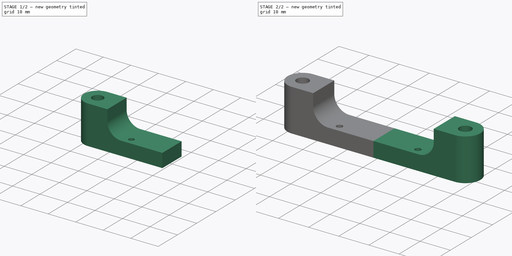
[diagram: build sequence overview — one tinted view per stage of 2, left to right]
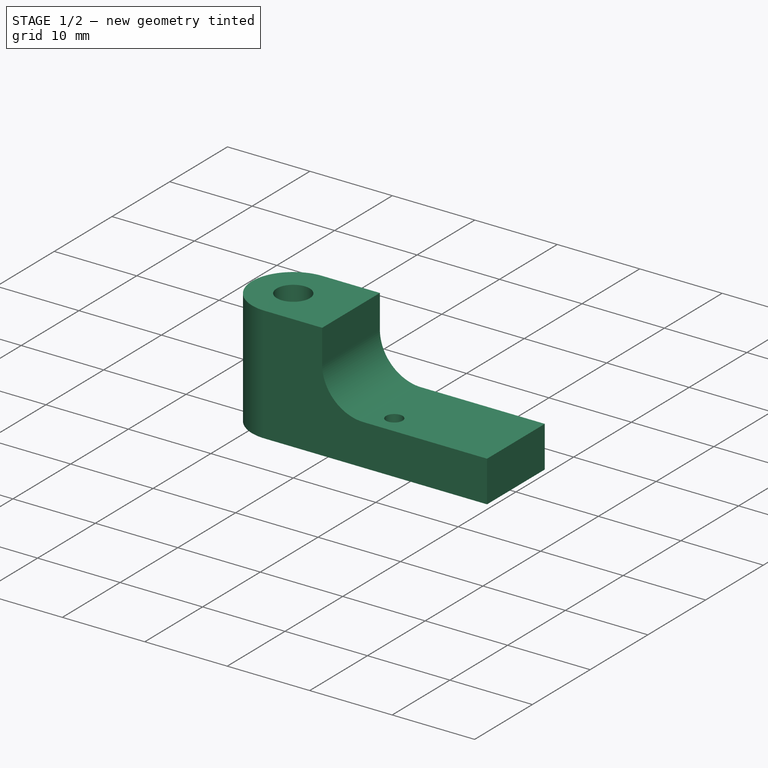
[diagram: stage 1 of 2 — iso view after this stage's code; geometry added in this stage tinted green]
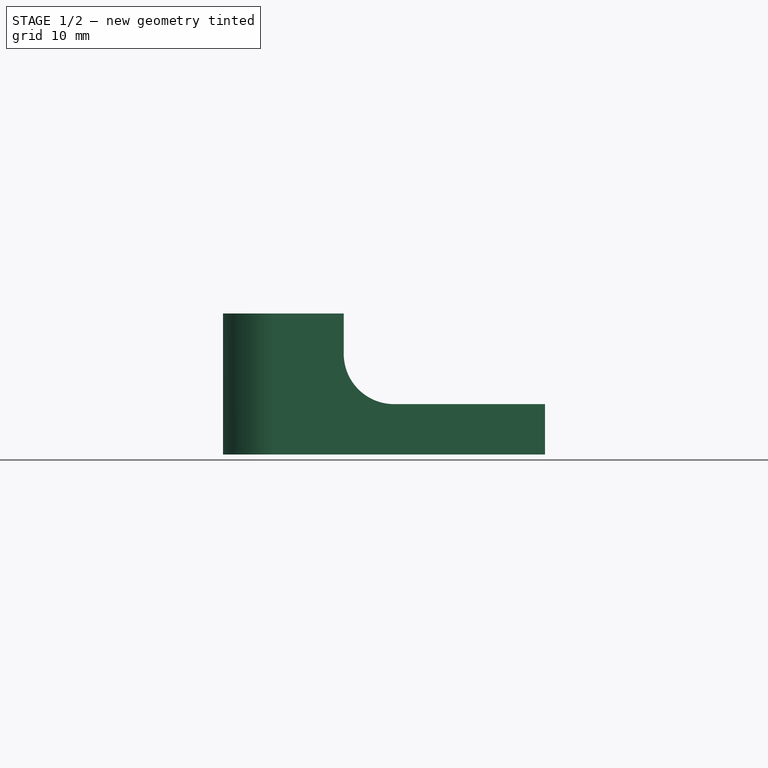
[diagram: stage 1 of 2 — front view after this stage's code; geometry added in this stage tinted green]
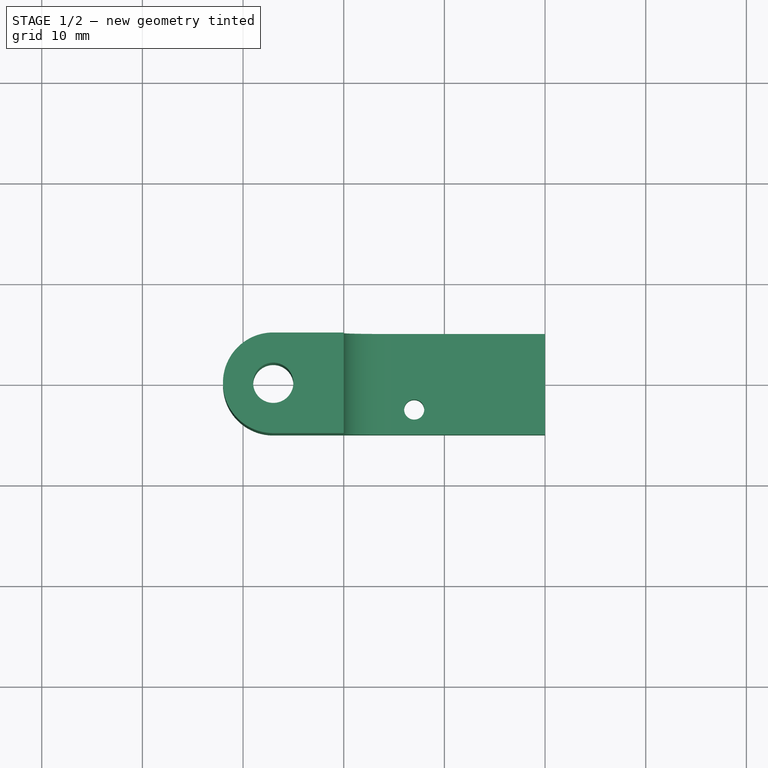
[diagram: stage 1 of 2 — top view after this stage's code; geometry added in this stage tinted green]
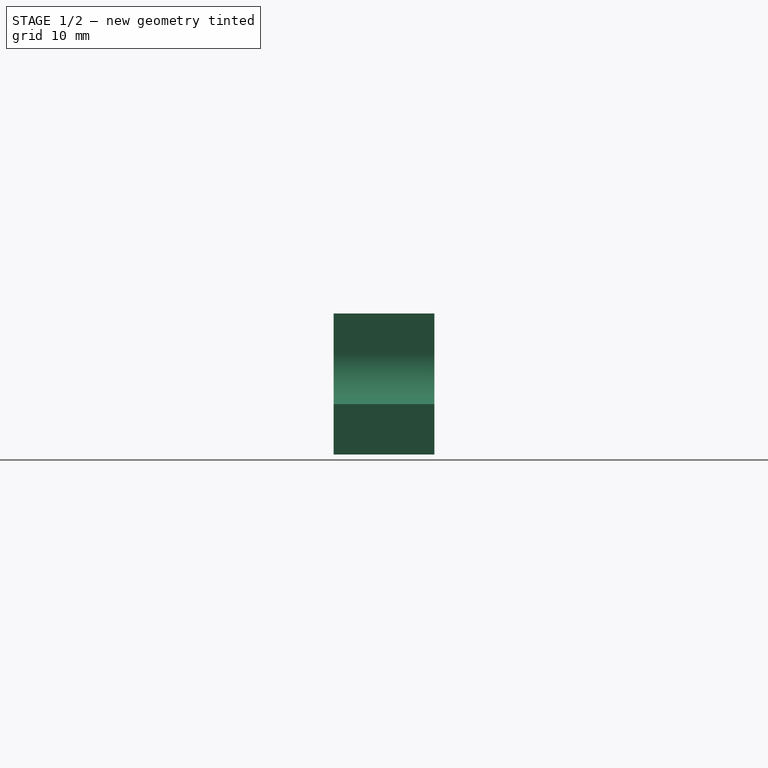
[diagram: stage 1 of 2 — right view after this stage's code; geometry added in this stage tinted green]
FCSTD DOCUMENT  (FreeCAD 0.19R24291 (Git))
Label: Подложка1
License: All rights reserved
LicenseURL: http://en.wikipedia.org/wiki/All_rights_reserved
objects: Sketcher::SketchObject×2, PartDesign::Pad×1, PartDesign::Pocket×1, PartDesign::Mirrored×1, PartDesign::Body×1
note: 8 computed .brp shape members not serialized (recipe doc carries the construction recipe); baked Part::Feature solids carry a one-line shape summary decoded from their .brp

FEATURE [Sketcher::SketchObject] Sketch
  FullyConstrained = true
  MapMode = 5
  Support = -> [XY_Plane]
  sketch-geometry (9):
    g0: ArcOfCircle CenterX=-27 CenterY=0 CenterZ=0 NormalX=0 NormalY=0 NormalZ=1 AngleXU=0 Radius=5 StartAngle=1.57079 EndAngle=4.71239
    g1: LineSegment StartX=-27 StartY=5 StartZ=0 EndX=0 EndY=5 EndZ=0
    g2: LineSegment StartX=-27 StartY=-5 StartZ=0 EndX=0 EndY=-5 EndZ=0
    g3: Circle CenterX=-27 CenterY=0 CenterZ=0 NormalX=0 NormalY=0 NormalZ=1 AngleXU=0 Radius=2
    g4: Circle CenterX=-13 CenterY=-2.5 CenterZ=0 NormalX=0 NormalY=0 NormalZ=1 AngleXU=0 Radius=1
    g5: GeomPoint X=-32 Y=0 Z=0
    g6: LineSegment StartX=-13 StartY=0 StartZ=0 EndX=-13 EndY=-2.5 EndZ=0
    g7: LineSegment StartX=-13 StartY=-2.5 StartZ=0 EndX=-13 EndY=-5 EndZ=0
    g8: LineSegment StartX=0 StartY=-5 StartZ=0 EndX=0 EndY=5 EndZ=0
  constraints (26):
    c: PointOnObject(g0,g-1)
    c: Coincident(g1,g0)
    c: Horizontal(g1)
    c: Coincident(g2,g0)
    c: Horizontal(g2)
    c: Tangent(g1,g0)
    c: Tangent(g0,g2)
    c: Diameter(g3) = 4
    c: Diameter(g0) = 10
    c: PointOnObject(g2,g-2)
    c: PointOnObject(g1,g-2)
    c: Diameter(g4) = 2
    c: Coincident(g3,g0)
    c: PointOnObject(g5,g0)
    c: PointOnObject(g5,g-1)
    c: PointOnObject(g6,g-1)
    c: Coincident(g6,g4)
    c: Coincident(g7,g4)
    c: PointOnObject(g7,g2)
    c: Vertical(g7)
    c: Vertical(g6)
    c: Equal(g7,g6)
    c: Coincident(g8,g2)
    c: Coincident(g8,g1)
    c: Distance(g4,g8) = 13
    c: Distance(g-1,g0) = 27
FEATURE [PartDesign::Pad] Pad
  Direction = (1,1,1)
  Length = 14
  Length2 = 100
  Profile = -> Sketch
  Type = 0
FEATURE [Sketcher::SketchObject] Sketch001
  ExternalGeometry = -> [Pad]
  FullyConstrained = true
  MapMode = 5
  Placement = pos=(0,-5,0) rot=(1,0,0;1.5708rad)
  sketch-geometry (5):
    g0: LineSegment StartX=-20 StartY=14 StartZ=0 EndX=-20 EndY=10 EndZ=0
    g1: LineSegment StartX=0 StartY=5 StartZ=0 EndX=-15 EndY=5 EndZ=0
    g2: LineSegment StartX=-20 StartY=14 StartZ=0 EndX=0 EndY=14 EndZ=0
    g3: LineSegment StartX=0 StartY=14 StartZ=0 EndX=0 EndY=5 EndZ=0
    g4: ArcOfCircle CenterX=-15 CenterY=10 CenterZ=0 NormalX=0 NormalY=0 NormalZ=1 AngleXU=0 Radius=5 StartAngle=3.14159 EndAngle=4.71239
  constraints (16):
    c: Vertical(g0)
    c: Horizontal(g1)
    c: Distance(g1,g-1) = 5
    c: PointOnObject(g1,g-2)
    c: Coincident(g0,g2)
    c: PointOnObject(g2,g-2)
    c: Horizontal(g2)
    c: Coincident(g2,g3)
    c: Coincident(g3,g1)
    c: Horizontal(g-3,g0)
    c: Distance(g-3,g0) = 5
    c: Coincident(g4,g0)
    c: Coincident(g4,g1)
    c: Tangent(g4,g1)
    c: Tangent(g4,g0)
    c: Radius(g4) = 5
FEATURE [PartDesign::Pocket] Pocket
  BaseFeature = -> Pad
  Length = 5
  Length2 = 100
  Profile = -> Sketch001
  Type = 1
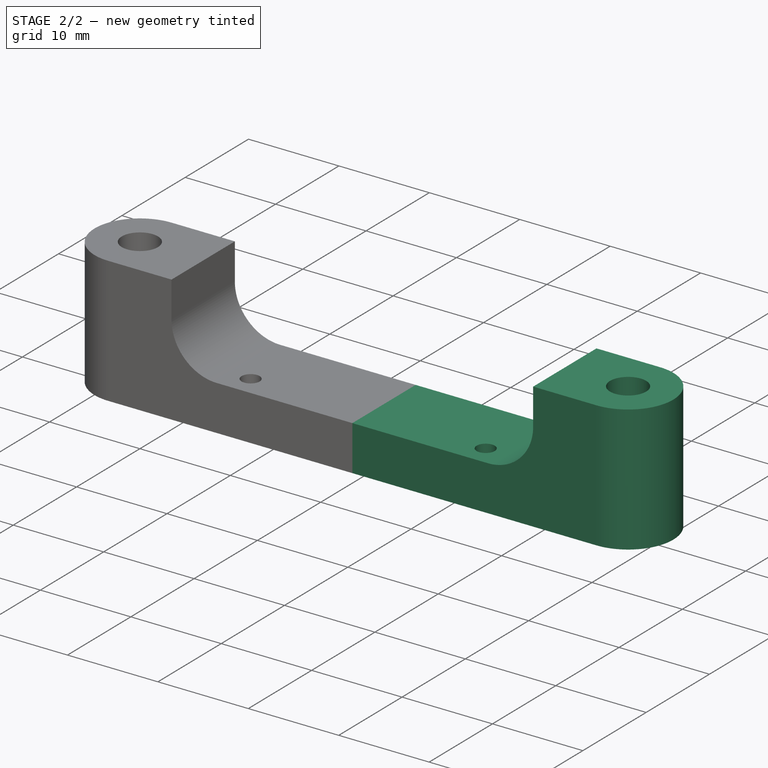
[diagram: stage 2 of 2 — iso view after this stage's code; geometry added in this stage tinted green]
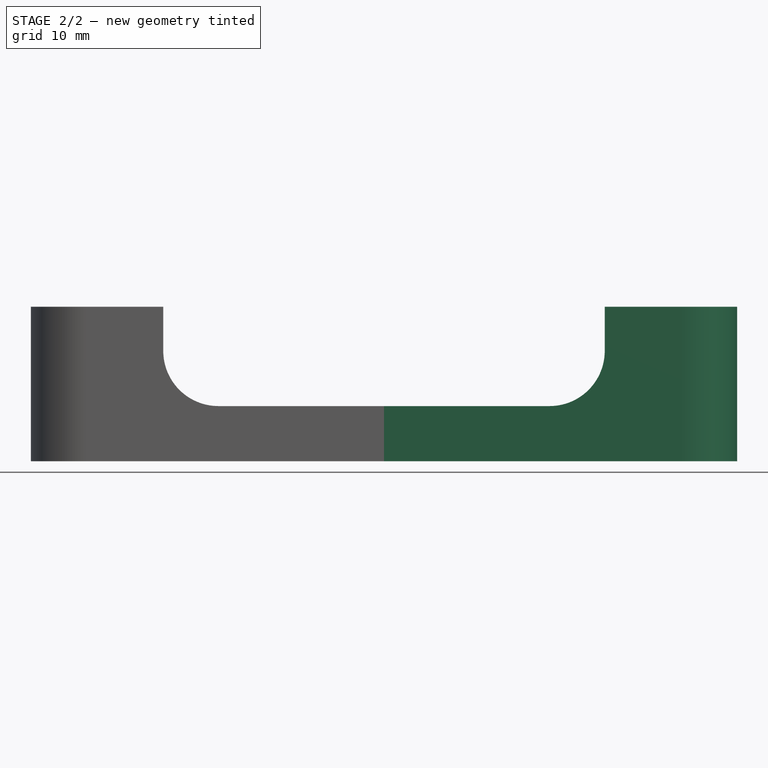
[diagram: stage 2 of 2 — front view after this stage's code; geometry added in this stage tinted green]
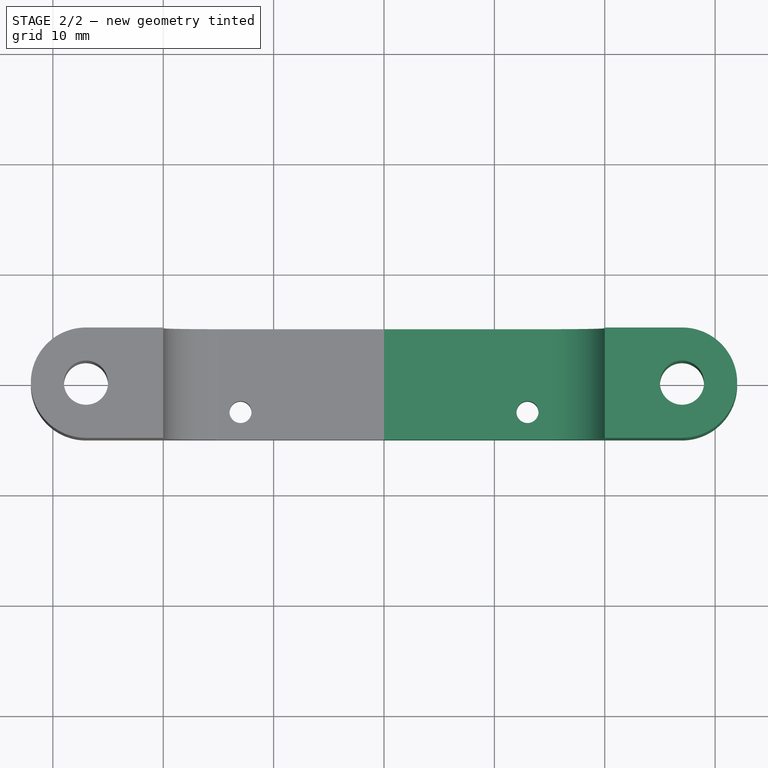
[diagram: stage 2 of 2 — top view after this stage's code; geometry added in this stage tinted green]
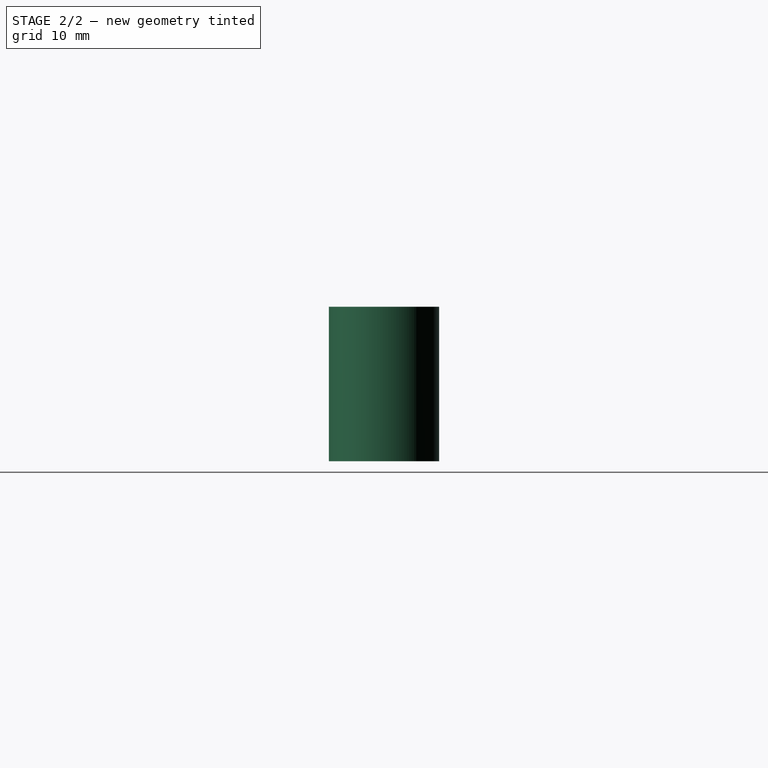
[diagram: stage 2 of 2 — right view after this stage's code; geometry added in this stage tinted green]
FEATURE [PartDesign::Mirrored] Mirrored
  BaseFeature = -> Pocket
  MirrorPlane = -> Sketch001 [V_Axis]
  Originals = -> [Pad,Pocket]
FEATURE [PartDesign::Body] Body
  Group = -> [Sketch,Pad,Sketch001,Pocket,Mirrored]
  Origin = -> Origin
  Tip = -> Mirrored
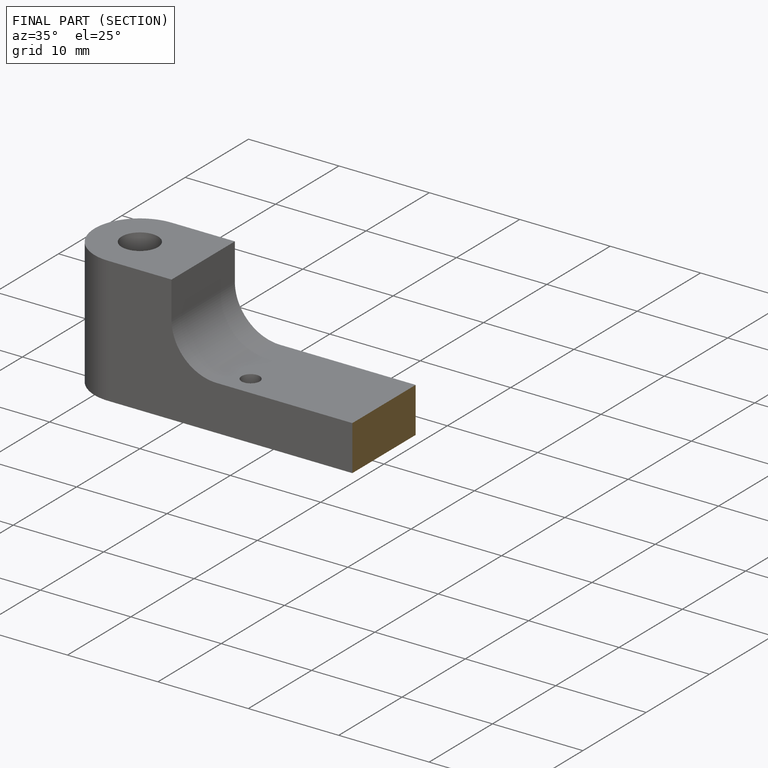
[diagram: finished part — half-section view (interior)]
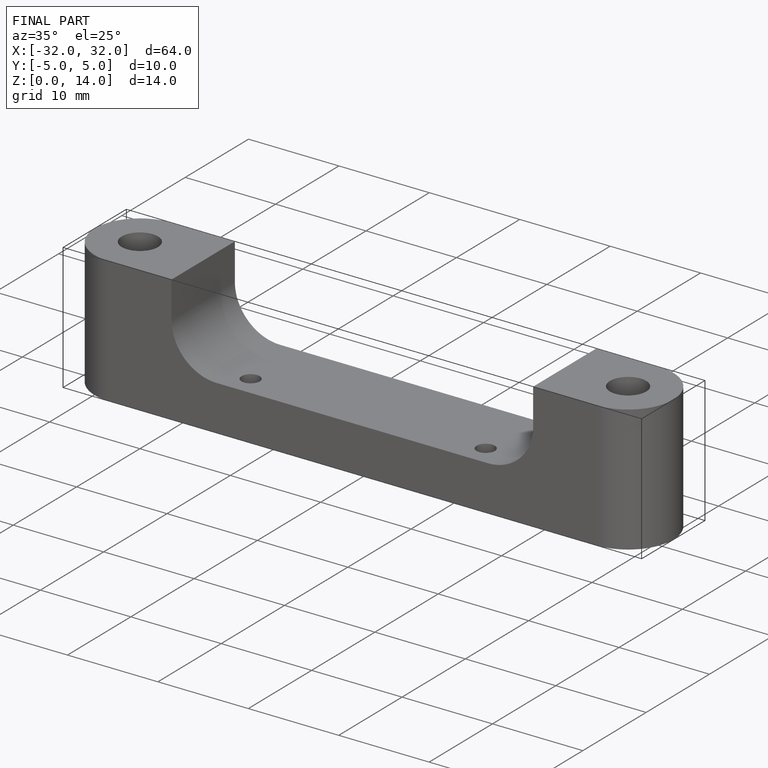
[diagram: finished part — iso view with bounding-box wireframe]
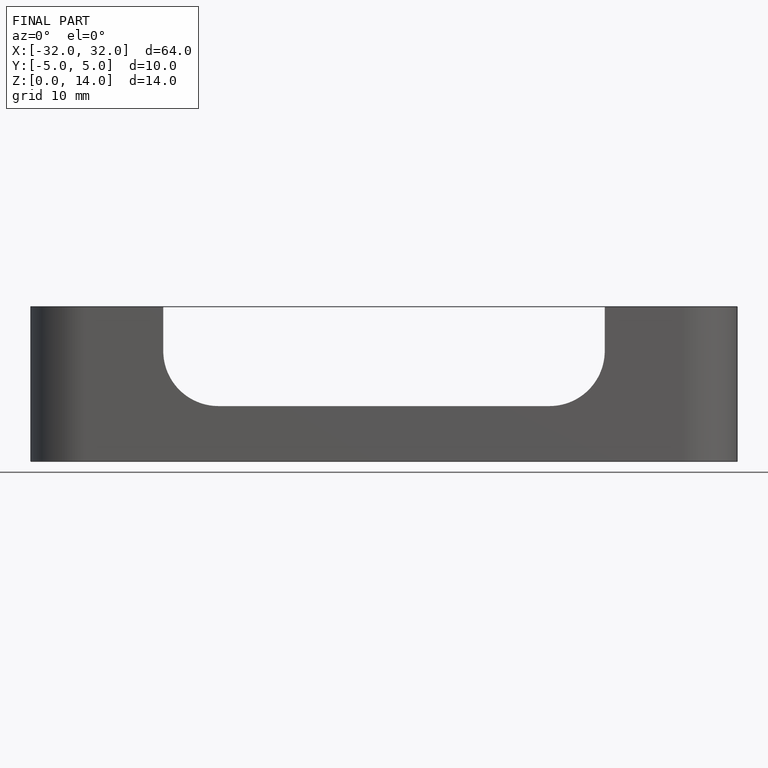
[diagram: finished part — front view with bounding-box wireframe]
